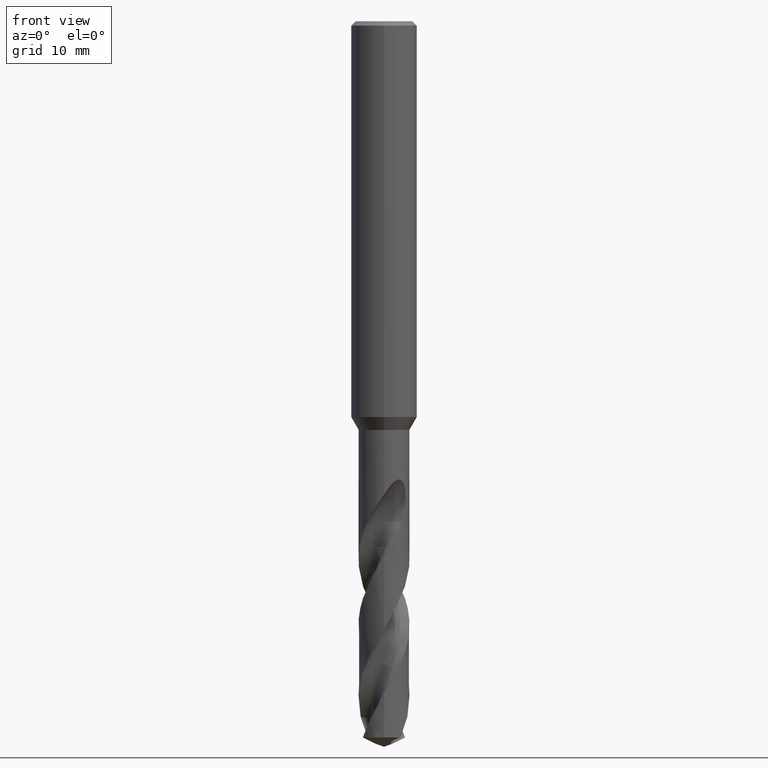
[diagram: clean part render]
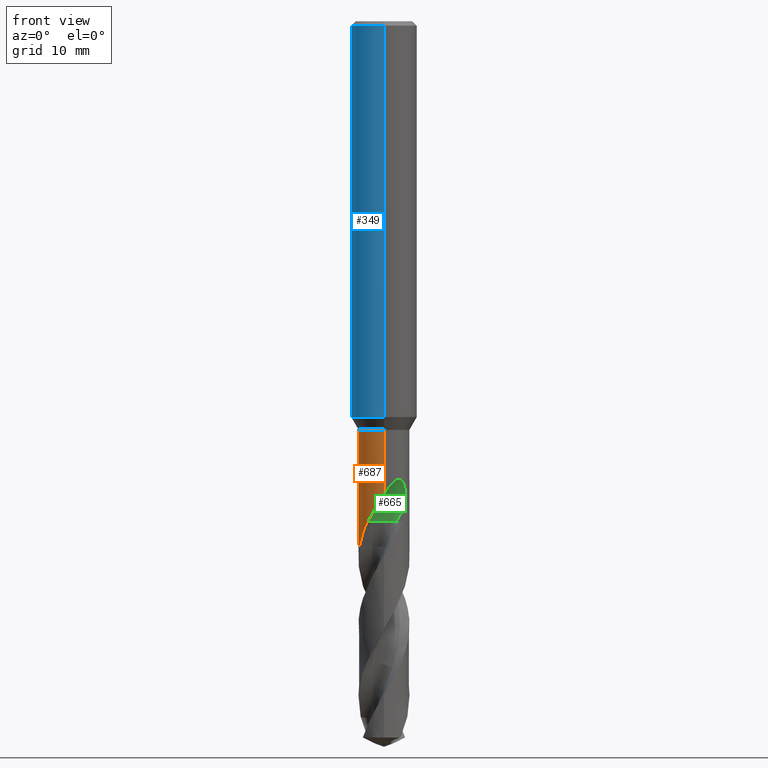
[diagram: same view with three faces highlighted in distinct colors, each labeled with its STEP entity id]
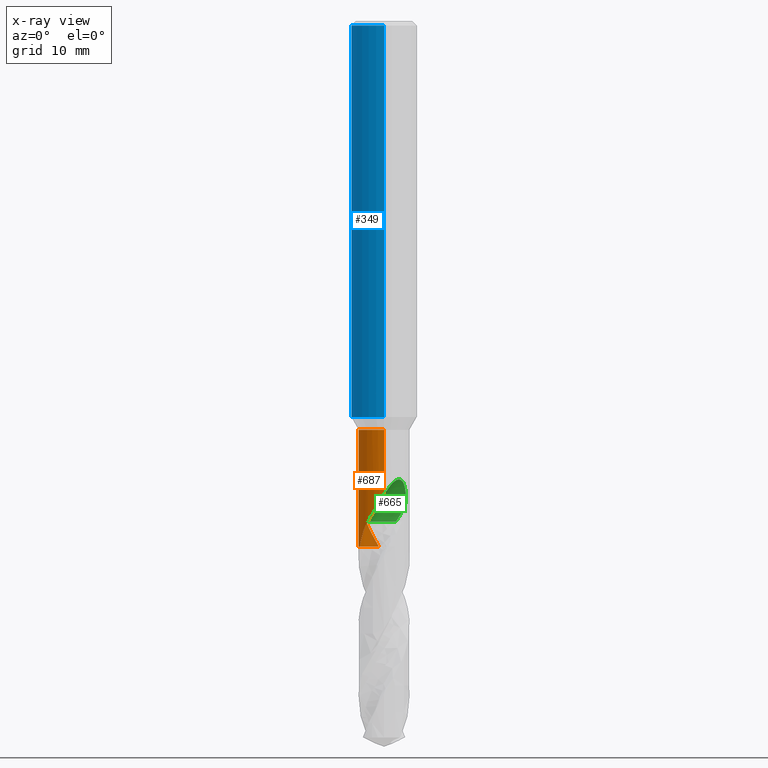
[diagram: x-ray of the same camera — body ghosted, the three highlighted faces saturated]
A machine part, front view with three faces highlighted in distinct colors.
The next image is the same camera in x-ray (body ghosted, the three faces saturated) — at least one of them is partly hidden behind the body in this view.
Their STEP definitions:

[orange] entity #687 — the highlighted cylindrical surface (edge-blend (fillet) strip) has radius 2.325 mm, axis along (-0, -0, 1).
#295=VERTEX_POINT('',#819);
#297=EDGE_CURVE('',#685,#411,#821,.T.);
#299=EDGE_CURVE('',#485,#399,#823,.T.);
#399=VERTEX_POINT('',#933);
#411=VERTEX_POINT('',#946);
#413=EDGE_CURVE('',#763,#295,#948,.T.);
#453=EDGE_CURVE('',#399,#759,#995,.T.);
#485=VERTEX_POINT('',#1028);
#515=EDGE_CURVE('',#759,#753,#1063,.T.);
#537=EDGE_CURVE('',#753,#763,#1088,.T.);
#621=VERTEX_POINT('',#1176);
#645=EDGE_CURVE('',#411,#621,#1203,.T.);
#685=VERTEX_POINT('',#1248);
#687=ADVANCED_FACE('',(#1250),#1251,.T.);
#713=EDGE_CURVE('',#621,#485,#1279,.T.);
#753=VERTEX_POINT('',#1321);
#759=VERTEX_POINT('',#1328);
#763=VERTEX_POINT('',#1332);
#787=EDGE_CURVE('',#685,#295,#1358,.T.);
#819=CARTESIAN_POINT('',(-0.468979195280664,2.27720958947434,-47.8));
#821=B_SPLINE_CURVE_WITH_KNOTS('',3,(#1564,#1565,#1566,#1567,#1568,#1569,#1570,#1571),.UNSPECIFIED.,.F.,.F.,(4,2,2,4),(0.0,1.33621895513997,2.18349234348016,3.7205892893453),.UNSPECIFIED.);
#823=CIRCLE('',#1574,2.325);
#933=CARTESIAN_POINT('',(0.0,2.325,-37.169134295109));
#946=CARTESIAN_POINT('',(-1.48152781817987,-1.79184271741668,-45.5204));
#948=B_SPLINE_CURVE_WITH_KNOTS('',3,(#2707,#2708,#2709,#2710,#2711,#2712,#2713,#2714,#2715,#2716),.UNSPECIFIED.,.F.,.F.,(4,2,2,2,4),(0.0,0.564898171300865,1.07733946612796,1.72985659177052,2.38118299151568),.UNSPECIFIED.);
#995=LINE('',#3119,#3120);
#1028=CARTESIAN_POINT('',(2.84720977263703E-016,-2.325,-37.169134295109));
#1063=B_SPLINE_CURVE_WITH_KNOTS('',3,(#4188,#4189,#4190,#4191,#4192,#4193,#4194,#4195,#4196,#4197,#4198,#4199,#4200,#4201,#4202,#4203,#4204,#4205,#4206,#4207,#4208,#4209,#4210,#4211,#4212,#4213,#4214,#4215),.UNSPECIFIED.,.F.,.F.,(4,2,2,2,2,2,2,2,2,2,2,2,2,4),(0.0,1.13912248348588,1.76110910374654,2.32447259930621,2.97896567979331,3.76516129419405,4.44657056783404,4.75536160848655,4.98105022244976,5.19461766066321,5.46554068969925,5.86191207239794,6.42540059556112,7.06617161550241),.UNSPECIFIED.);
#1088=B_SPLINE_CURVE_WITH_KNOTS('',3,(#4759,#4760,#4761,#4762),.UNSPECIFIED.,.F.,.F.,(4,4),(0.0,1.33622376878182),.UNSPECIFIED.);
#1176=CARTESIAN_POINT('',(6.88258591151304E-013,-2.325,-43.0489714980473));
#1203=B_SPLINE_CURVE_WITH_KNOTS('',3,(#5565,#5566,#5567,#5568,#5569,#5570,#5571,#5572,#5573,#5574,#5575,#5576,#5577,#5578,#5579,#5580,#5581,#5582,#5583,#5584,#5585,#5586,#5587,#5588,#5589,#5590,#5591,#5592),.UNSPECIFIED.,.F.,.F.,(4,2,2,2,2,2,2,2,2,2,2,2,2,4),(0.0,1.13912248348587,1.76110910374652,2.32447259930614,2.97896567979316,3.76516129419391,4.44657056783377,4.75536160848624,4.98105022244952,5.19461766066308,5.46554068969922,5.86191207239769,6.42540059555989,7.06617161550016),.UNSPECIFIED.);
#1248=CARTESIAN_POINT('',(-2.22970567293028,-0.658815309553856,-47.8));
#1250=FACE_OUTER_BOUND('',#6107,.T.);
#1251=CYLINDRICAL_SURFACE('',#6108,2.325);
#1279=LINE('',#6602,#6603);
#1321=CARTESIAN_POINT('',(-1.89171802965627,1.35167595831005,-44.2472759697794));
#1328=CARTESIAN_POINT('',(-6.86593256614366E-013,2.325,-43.0489714980473));
#1332=CARTESIAN_POINT('',(-1.61605482158155,1.67152379990326,-45.5204));
#1358=CIRCLE('',#6971,2.325);
#1564=CARTESIAN_POINT('',(-2.22970567293029,-0.658815309553822,-47.8));
#1565=CARTESIAN_POINT('',(-2.16643862117497,-0.872937389236441,-47.4145965703222));
#1566=CARTESIAN_POINT('',(-2.07621810473157,-1.07000531673003,-47.058610799916));
#1567=CARTESIAN_POINT('',(-1.87857789243243,-1.37719289906454,-46.4035688928686));
#1568=CARTESIAN_POINT('',(-1.81184241533084,-1.45842224238754,-46.2036975721533));
#1569=CARTESIAN_POINT('',(-1.69439563546919,-1.5963349089454,-45.8851916999869));
#1570=CARTESIAN_POINT('',(-1.60037027557868,-1.69358163406053,-45.698303674519));
#1571=CARTESIAN_POINT('',(-1.48152781817987,-1.79184271741668,-45.5204));
#1574=AXIS2_PLACEMENT_3D('',#6978,#6979,#6980);
#2707=CARTESIAN_POINT('',(-1.61605482158155,1.67152379990326,-45.5204));
#2708=CARTESIAN_POINT('',(-1.55171583247687,1.73372772040042,-45.686073857906));
#2709=CARTESIAN_POINT('',(-1.48173903120637,1.79446044529291,-45.8528149749503));
#2710=CARTESIAN_POINT('',(-1.32948919931585,1.90953499024573,-46.1781617750247));
#2711=CARTESIAN_POINT('',(-1.25199236960511,1.96161030979193,-46.3342576353695));
#2712=CARTESIAN_POINT('',(-1.05756490291922,2.07437477290349,-46.7198769177179));
#2713=CARTESIAN_POINT('',(-0.944194570219034,2.12830651832897,-46.9374721351299));
#2714=CARTESIAN_POINT('',(-0.711215541794631,2.21704932586797,-47.369963200494));
#2715=CARTESIAN_POINT('',(-0.591367074244119,2.25200445716958,-47.5844691203133));
#2716=CARTESIAN_POINT('',(-0.468979195280657,2.27720958947435,-47.8));
#3119=CARTESIAN_POINT('',(-2.84720977263703E-016,2.325,-42.4845671475545));
#3120=VECTOR('',#7185,1.0);
#4188=CARTESIAN_POINT('',(1.48152781817987,1.79184271741668,-45.5204));
#4189=CARTESIAN_POINT('',(1.32816215524954,1.91864820864443,-45.1970161379965));
#4190=CARTESIAN_POINT('',(1.15182628411203,2.03136949808758,-44.8955182134654));
#4191=CARTESIAN_POINT('',(0.84434904546233,2.16953302435673,-44.3918451695184));
#4192=CARTESIAN_POINT('',(0.733704405919695,2.20927740577945,-44.214636223586));
#4193=CARTESIAN_POINT('',(0.51951035348296,2.26867677151736,-43.8716055507408));
#4194=CARTESIAN_POINT('',(0.416917325289457,2.28966242904573,-43.7073827692751));
#4195=CARTESIAN_POINT('',(0.194846619808166,2.31994993414916,-43.3534389842937));
#4196=CARTESIAN_POINT('',(0.0735139969543763,2.32706061704974,-43.1609474906288));
#4197=CARTESIAN_POINT('',(-0.195934632326863,2.32139290999632,-42.74914471164));
#4198=CARTESIAN_POINT('',(-0.355690414189737,2.30386268257938,-42.5148244390516));
#4199=CARTESIAN_POINT('',(-0.66375879775824,2.23306719086912,-42.1284464504008));
#4200=CARTESIAN_POINT('',(-0.834200744659196,2.17912994749306,-41.9399090686598));
#4201=CARTESIAN_POINT('',(-1.09216290122272,2.05445568284207,-41.7633628792005));
#4202=CARTESIAN_POINT('',(-1.17755003406933,2.00738830728121,-41.7197312722515));
#4203=CARTESIAN_POINT('',(-1.32716792808106,1.91047541566618,-41.6862143675087));
#4204=CARTESIAN_POINT('',(-1.38853463076109,1.86634055462212,-41.6855885216974));
#4205=CARTESIAN_POINT('',(-1.50283343071054,1.77543194979653,-41.7149227780663));
#4206=CARTESIAN_POINT('',(-1.55282202345978,1.73152490647007,-41.7424262534026));
#4207=CARTESIAN_POINT('',(-1.65454825534067,1.63530604700301,-41.8284814688829));
#4208=CARTESIAN_POINT('',(-1.7016114144506,1.58544301599988,-41.8920177676555));
#4209=CARTESIAN_POINT('',(-1.79801198251176,1.47656343284232,-42.0659998892848));
#4210=CARTESIAN_POINT('',(-1.84408953241722,1.41727070809296,-42.1950432119693));
#4211=CARTESIAN_POINT('',(-1.93073666212595,1.29821165554219,-42.5560920700774));
#4212=CARTESIAN_POINT('',(-1.962061605364,1.24749821680123,-42.8132262215861));
#4213=CARTESIAN_POINT('',(-1.98209052043838,1.21546136214634,-43.4279852717849));
#4214=CARTESIAN_POINT('',(-1.9678987245023,1.24505839729924,-43.813981732258));
#4215=CARTESIAN_POINT('',(-1.89171802965627,1.35167595831006,-44.2472759697795));
#4759=CARTESIAN_POINT('',(-1.89171802970888,1.35167595823641,-44.2472759698084));
#4760=CARTESIAN_POINT('',(-1.81676194605544,1.45657963283354,-44.6736150630027));
#4761=CARTESIAN_POINT('',(-1.72641983044957,1.56482121826764,-45.1024912825263));
#4762=CARTESIAN_POINT('',(-1.61605482158155,1.67152379990326,-45.5204));
#5565=CARTESIAN_POINT('',(-1.48152781817987,-1.79184271741668,-45.5204));
#5566=CARTESIAN_POINT('',(-1.32816215524954,-1.91864820864443,-45.1970161379965));
#5567=CARTESIAN_POINT('',(-1.15182628411204,-2.03136949808758,-44.8955182134654));
#5568=CARTESIAN_POINT('',(-0.844349045462329,-2.16953302435673,-44.3918451695184));
#5569=CARTESIAN_POINT('',(-0.733704405919692,-2.20927740577945,-44.214636223586));
#5570=CARTESIAN_POINT('',(-0.519510353482972,-2.26867677151736,-43.8716055507409));
#5571=CARTESIAN_POINT('',(-0.416917325289483,-2.28966242904573,-43.7073827692751));
#5572=CARTESIAN_POINT('',(-0.19484661980814,-2.31994993414916,-43.3534389842936));
#5573=CARTESIAN_POINT('',(-0.0735139969543639,-2.32706061704974,-43.1609474906288));
#5574=CARTESIAN_POINT('',(0.195934632326865,-2.32139290999632,-42.74914471164));
#5575=CARTESIAN_POINT('',(0.355690414189739,-2.30386268257938,-42.5148244390516));
#5576=CARTESIAN_POINT('',(0.663758797758215,-2.23306719086912,-42.1284464504009));
#5577=CARTESIAN_POINT('',(0.834200744659192,-2.17912994749307,-41.9399090686598));
#5578=CARTESIAN_POINT('',(1.09216290122272,-2.05445568284207,-41.7633628792005));
#5579=CARTESIAN_POINT('',(1.17755003406933,-2.0073883072812,-41.7197312722515));
#5580=CARTESIAN_POINT('',(1.32716792808108,-1.91047541566616,-41.6862143675086));
#5581=CARTESIAN_POINT('',(1.3885346307611,-1.86634055462212,-41.6855885216974));
#5582=CARTESIAN_POINT('',(1.50283343071055,-1.77543194979653,-41.7149227780663));
#5583=CARTESIAN_POINT('',(1.55282202345979,-1.73152490647007,-41.7424262534026));
#5584=CARTESIAN_POINT('',(1.65454825534066,-1.63530604700301,-41.8284814688829));
#5585=CARTESIAN_POINT('',(1.70161141445059,-1.58544301599989,-41.8920177676555));
#5586=CARTESIAN_POINT('',(1.79801198251172,-1.47656343284236,-42.0659998892847));
#5587=CARTESIAN_POINT('',(1.84408953241719,-1.41727070809299,-42.1950432119692));
#5588=CARTESIAN_POINT('',(1.93073666212593,-1.29821165554222,-42.5560920700773));
#5589=CARTESIAN_POINT('',(1.962061605364,-1.24749821680123,-42.8132262215859));
#5590=CARTESIAN_POINT('',(1.98209052043839,-1.21546136214633,-43.4279852717851));
#5591=CARTESIAN_POINT('',(1.96789872450227,-1.24505839729928,-43.8139817322582));
#5592=CARTESIAN_POINT('',(1.89171802965627,-1.35167595831005,-44.2472759697795));
#6107=EDGE_LOOP('',(#7428,#7429,#7430,#7431,#7432,#7433,#7434,#7435,#7436));
#6108=AXIS2_PLACEMENT_3D('',#7437,#7438,#7439);
#6602=CARTESIAN_POINT('',(2.84720977263703E-016,-2.325,-42.4845671475545));
#6603=VECTOR('',#7464,1.0);
#6971=AXIS2_PLACEMENT_3D('',#7526,#7527,#7528);
#6978=CARTESIAN_POINT('',(0.0,0.0,-37.169134295109));
#6979=DIRECTION('',(0.0,0.0,-1.0));
#6980=DIRECTION('',(0.0,1.0,0.0));
#7185=DIRECTION('',(0.0,0.0,-1.0));
#7428=ORIENTED_EDGE('',*,*,#453,.T.);
#7429=ORIENTED_EDGE('',*,*,#515,.T.);
#7430=ORIENTED_EDGE('',*,*,#537,.T.);
#7431=ORIENTED_EDGE('',*,*,#413,.T.);
#7432=ORIENTED_EDGE('',*,*,#787,.F.);
#7433=ORIENTED_EDGE('',*,*,#297,.T.);
#7434=ORIENTED_EDGE('',*,*,#645,.T.);
#7435=ORIENTED_EDGE('',*,*,#713,.T.);
#7436=ORIENTED_EDGE('',*,*,#299,.T.);
#7437=CARTESIAN_POINT('',(0.0,0.0,-42.4845671475545));
#7438=DIRECTION('',(-0.0,-0.0,1.0));
#7439=DIRECTION('',(0.0,1.0,0.0));
#7464=DIRECTION('',(-0.0,-0.0,1.0));
#7526=CARTESIAN_POINT('',(0.0,0.0,-47.8));
#7527=DIRECTION('',(0.0,0.0,-1.0));
#7528=DIRECTION('',(0.0,1.0,0.0));

[blue] entity #349 — the highlighted cylindrical surface (edge-blend (fillet) strip) has radius 3 mm, axis along (-0, -0, 1).
#285=VERTEX_POINT('',#808);
#349=ADVANCED_FACE('',(#876),#877,.T.);
#383=EDGE_CURVE('',#545,#747,#916,.T.);
#385=EDGE_CURVE('',#523,#771,#918,.T.);
#425=EDGE_CURVE('',#457,#473,#962,.T.);
#427=VERTEX_POINT('',#964);
#457=VERTEX_POINT('',#999);
#459=EDGE_CURVE('',#747,#785,#1001,.T.);
#473=VERTEX_POINT('',#1016);
#503=VERTEX_POINT('',#1049);
#523=VERTEX_POINT('',#1072);
#545=VERTEX_POINT('',#1097);
#549=EDGE_CURVE('',#765,#523,#1101,.T.);
#567=EDGE_CURVE('',#285,#637,#1119,.T.);
#587=EDGE_CURVE('',#503,#285,#1140,.T.);
#637=VERTEX_POINT('',#1193);
#679=EDGE_CURVE('',#771,#457,#1242,.T.);
#715=EDGE_CURVE('',#427,#545,#1281,.T.);
#721=EDGE_CURVE('',#637,#427,#1287,.T.);
#747=VERTEX_POINT('',#1315);
#765=VERTEX_POINT('',#1334);
#769=EDGE_CURVE('',#765,#785,#1338,.T.);
#771=VERTEX_POINT('',#1340);
#777=EDGE_CURVE('',#473,#503,#1346,.T.);
#785=VERTEX_POINT('',#1356);
#808=CARTESIAN_POINT('',(-1.0350734039088,2.81578107254819,-31.3171221986971));
#876=FACE_OUTER_BOUND('',#1794,.T.);
#877=CYLINDRICAL_SURFACE('',#1795,3.0);
#916=B_SPLINE_CURVE_WITH_KNOTS('',3,(#2576,#2577,#2578,#2579,#2580,#2581,#2582,#2583,#2584,#2585,#2586,#2587,#2588,#2589,#2590,#2591),.UNSPECIFIED.,.F.,.F.,(4,2,2,2,2,2,2,4),(5.66023402257373,6.29060333517104,6.60504483258975,6.91948633000846,7.23392782742717,7.54836932484587,7.86141901111221,8.17446869737855),.UNSPECIFIED.);
#918=CIRCLE('',#2594,3.0);
#962=B_SPLINE_CURVE_WITH_KNOTS('',3,(#2733,#2734,#2735,#2736,#2737,#2738,#2739,#2740,#2741,#2742,#2743,#2744,#2745,#2746,#2747,#2748,#2749,#2750,#2751,#2752,#2753,#2754,#2755,#2756,#2757,#2758,#2759),.UNSPECIFIED.,.F.,.F.,(4,2,3,2,2,2,2,2,2,2,2,2,4),(-0.54422824842136,-0.27211412421068,0.0,0.272114124210678,0.544228248421357,0.817906359646673,1.09158447087199,1.36255924571499,1.63353402055798,1.90530456554772,2.17707511053746,2.4488456555272,2.72061620051693),.UNSPECIFIED.);
#964=CARTESIAN_POINT('',(-3.67366600472444E-016,3.0,-32.7128911336578));
#999=CARTESIAN_POINT('',(-1.20768269592175E-015,3.0,-32.0232688117743));
#1001=LINE('',#3154,#3155);
#1016=CARTESIAN_POINT('',(-0.486378944383045,2.96031003823262,-31.6432837483006));
#1049=CARTESIAN_POINT('',(-0.562333990228013,2.94682549253162,-31.3171221986971));
#1072=CARTESIAN_POINT('',(3.67381906146713E-016,-3.0,-0.399999999999999));
#1097=CARTESIAN_POINT('',(-1.337052752443,2.68557069115386,-33.3720803908795));
#1101=LINE('',#4780,#4781);
#1119=B_SPLINE_CURVE_WITH_KNOTS('',3,(#4837,#4838,#4839,#4840,#4841,#4842,#4843,#4844,#4845,#4846,#4847,#4848,#4849,#4850),.UNSPECIFIED.,.F.,.F.,(4,2,2,2,2,2,4),(3.16026050654945,3.61086409539206,4.06146768423468,4.51207127307729,4.95991823802074,5.40776520296419,5.86282890530594),.UNSPECIFIED.);
#1140=CIRCLE('',#5038,3.0);
#1193=CARTESIAN_POINT('',(-2.06254272401587E-016,3.0,-32.5000801551881));
#1242=LINE('',#6096,#6097);
#1281=ELLIPSE('',#6606,3.34478529612858,3.0);
#1287=LINE('',#6623,#6624);
#1315=CARTESIAN_POINT('',(-2.46407913303377E-016,3.0,-34.0310253601033));
#1334=CARTESIAN_POINT('',(3.67381906146713E-016,-3.0,-36.0));
#1338=CIRCLE('',#6919,3.0);
#1340=CARTESIAN_POINT('',(0.0,3.0,-0.399999999999999));
#1346=B_SPLINE_CURVE_WITH_KNOTS('',3,(#6930,#6931,#6932,#6933,#6934,#6935,#6936,#6937,#6938,#6939,#6940,#6941,#6942,#6943,#6944,#6945,#6946,#6947,#6948,#6949,#6950,#6951,#6952,#6953,#6954,#6955,#6956),.UNSPECIFIED.,.F.,.F.,(4,2,3,2,2,2,2,2,2,2,2,2,4),(-0.54422824842136,-0.27211412421068,0.0,0.272114124210678,0.544228248421357,0.817906359646673,1.09158447087199,1.36255924571499,1.63353402055798,1.90530456554772,2.17707511053746,2.4488456555272,2.72061620051693),.UNSPECIFIED.);
#1356=CARTESIAN_POINT('',(0.0,3.0,-36.0));
#1794=EDGE_LOOP('',(#7032,#7033,#7034,#7035,#7036,#7037,#7038,#7039,#7040,#7041,#7042,#7043));
#1795=AXIS2_PLACEMENT_3D('',#7044,#7045,#7046);
#2576=CARTESIAN_POINT('',(-1.53050642192579,2.58022287650581,-33.0319811255889));
#2577=CARTESIAN_POINT('',(-1.44691631248335,2.62980577312329,-33.2314887010961));
#2578=CARTESIAN_POINT('',(-1.32276760444366,2.69707077181617,-33.4113258593841));
#2579=CARTESIAN_POINT('',(-1.10973155101076,2.78826898930335,-33.6245951706909));
#2580=CARTESIAN_POINT('',(-1.02948996220254,2.81934349084513,-33.6916117853674));
#2581=CARTESIAN_POINT('',(-0.853932698223484,2.87738531454781,-33.8105216600777));
#2582=CARTESIAN_POINT('',(-0.758609991487907,2.90431263574779,-33.8624240602539));
#2583=CARTESIAN_POINT('',(-0.558469552260235,2.94934446690523,-33.9464055954533));
#2584=CARTESIAN_POINT('',(-0.453457041446381,2.96746268462387,-33.9785511641911));
#2585=CARTESIAN_POINT('',(-0.240810292537893,2.99223469602914,-34.0209924679526));
#2586=CARTESIAN_POINT('',(-0.133171317626829,2.99887501234033,-34.0312723335086));
#2587=CARTESIAN_POINT('',(0.0759830626177195,3.00085245803086,-34.0312723335086));
#2588=CARTESIAN_POINT('',(0.183273473896684,2.99629272230549,-34.0210815541729));
#2589=CARTESIAN_POINT('',(0.39543915272815,2.97573303917486,-33.9788816901513));
#2590=CARTESIAN_POINT('',(0.500318639064909,2.95974677710468,-33.9468871509919));
#2591=CARTESIAN_POINT('',(0.600330982089903,2.93932011049205,-33.9050368602192));
#2594=AXIS2_PLACEMENT_3D('',#7089,#7090,#7091);
#2733=CARTESIAN_POINT('',(0.665621182276714,2.92522622060321,-30.8140957881762));
#2734=CARTESIAN_POINT('',(0.728850563417096,2.91083867849353,-30.877518087557));
#2735=CARTESIAN_POINT('',(0.783900459387161,2.89602337967411,-30.9578702196133));
#2736=CARTESIAN_POINT('',(0.857188692916628,2.87518328740958,-31.1345580124299));
#2737=CARTESIAN_POINT('',(0.875400981188567,2.86943777108584,-31.2309373045166));
#2738=CARTESIAN_POINT('',(0.875400981188567,2.86943777108584,-31.3216420125868));
#2739=CARTESIAN_POINT('',(0.875400981188567,2.86943777108584,-31.412346720657));
#2740=CARTESIAN_POINT('',(0.857188692916629,2.87518328740958,-31.5087260127437));
#2741=CARTESIAN_POINT('',(0.783900459387161,2.89602337967411,-31.6854138055602));
#2742=CARTESIAN_POINT('',(0.728850563417096,2.91083867849353,-31.7657659376165));
#2743=CARTESIAN_POINT('',(0.60202838769231,2.93969645569731,-31.8929750586276));
#2744=CARTESIAN_POINT('',(0.5214778595293,2.95568533572518,-31.9483797636259));
#2745=CARTESIAN_POINT('',(0.34429909105015,2.98152194310932,-32.0221641076746));
#2746=CARTESIAN_POINT('',(0.247628172090375,2.99115403786358,-32.0405166027747));
#2747=CARTESIAN_POINT('',(0.0663244946631877,3.00062654348629,-32.0405166027747));
#2748=CARTESIAN_POINT('',(-0.0299285908853379,3.00115720326599,-32.0224875186921));
#2749=CARTESIAN_POINT('',(-0.206881310600538,2.99416773126077,-31.949244373347));
#2750=CARTESIAN_POINT('',(-0.287593937381961,2.98687212067831,-31.8940404490632));
#2751=CARTESIAN_POINT('',(-0.415200117492864,2.97182576996222,-31.7666805419979));
#2752=CARTESIAN_POINT('',(-0.470604049431396,2.96309385107775,-31.6859121102136));
#2753=CARTESIAN_POINT('',(-0.544183869965539,2.95046729924835,-31.5086992019516));
#2754=CARTESIAN_POINT('',(-0.562348199187247,2.94682278104247,-31.41223219425));
#2755=CARTESIAN_POINT('',(-0.562348199187247,2.94682278104247,-31.2310518309235));
#2756=CARTESIAN_POINT('',(-0.54418386996554,2.95046729924835,-31.134584823222));
#2757=CARTESIAN_POINT('',(-0.4706040494314,2.96309385107775,-30.95737191496));
#2758=CARTESIAN_POINT('',(-0.415200117492863,2.97182576996222,-30.8766034831756));
#2759=CARTESIAN_POINT('',(-0.351303479704285,2.97935997575782,-30.812830162452));
#3154=CARTESIAN_POINT('',(-3.67381906146713E-016,3.0,-18.2));
#3155=VECTOR('',#7186,1.0);
#4780=CARTESIAN_POINT('',(3.67381906146713E-016,-3.0,-18.2));
#4781=VECTOR('',#7293,1.0);
#4837=CARTESIAN_POINT('',(-0.944028754947609,2.84759718180646,-30.87109591768));
#4838=CARTESIAN_POINT('',(-1.00479265183033,2.82745289805341,-31.0168616503562));
#4839=CARTESIAN_POINT('',(-1.03510901790186,2.81576798068631,-31.1761006644519));
#4840=CARTESIAN_POINT('',(-1.03510901790186,2.81576798068631,-31.4765030570137));
#4841=CARTESIAN_POINT('',(-1.00479265183033,2.82745289805341,-31.6357420711094));
#4842=CARTESIAN_POINT('',(-0.88326485806506,2.86774146555976,-31.9272735364618));
#4843=CARTESIAN_POINT('',(-0.792109261194285,2.89554580131596,-32.0596991578702));
#4844=CARTESIAN_POINT('',(-0.582867737485067,2.94478284423827,-32.2682275153448));
#4845=CARTESIAN_POINT('',(-0.450640829386874,2.96956027684007,-32.358826497016));
#4846=CARTESIAN_POINT('',(-0.159819744133953,2.99930375982357,-32.4794282329782));
#4847=CARTESIAN_POINT('',(-0.00114290335869099,3.00371168811663,-32.5093686300866));
#4848=CARTESIAN_POINT('',(0.299461057962613,2.98886806232847,-32.5093686300866));
#4849=CARTESIAN_POINT('',(0.459264276215476,2.96836791045541,-32.4785566268234));
#4850=CARTESIAN_POINT('',(0.604975334200916,2.93836771779988,-32.4175314011172));
#5038=AXIS2_PLACEMENT_3D('',#7307,#7308,#7309);
#6096=CARTESIAN_POINT('',(-3.67381906146713E-016,3.0,-18.2));
#6097=VECTOR('',#7425,1.0);
#6606=AXIS2_PLACEMENT_3D('',#7465,#7466,#7467);
#6623=CARTESIAN_POINT('',(-3.67381906146713E-016,3.0,-18.2));
#6624=VECTOR('',#7468,1.0);
#6919=AXIS2_PLACEMENT_3D('',#7502,#7503,#7504);
#6930=CARTESIAN_POINT('',(0.665621182276714,2.92522622060321,-30.8140957881762));
#6931=CARTESIAN_POINT('',(0.728850563417096,2.91083867849353,-30.877518087557));
#6932=CARTESIAN_POINT('',(0.783900459387161,2.89602337967411,-30.9578702196133));
#6933=CARTESIAN_POINT('',(0.857188692916628,2.87518328740958,-31.1345580124299));
#6934=CARTESIAN_POINT('',(0.875400981188567,2.86943777108584,-31.2309373045166));
#6935=CARTESIAN_POINT('',(0.875400981188567,2.86943777108584,-31.3216420125868));
#6936=CARTESIAN_POINT('',(0.875400981188567,2.86943777108584,-31.412346720657));
#6937=CARTESIAN_POINT('',(0.857188692916629,2.87518328740958,-31.5087260127437));
#6938=CARTESIAN_POINT('',(0.783900459387161,2.89602337967411,-31.6854138055602));
#6939=CARTESIAN_POINT('',(0.728850563417096,2.91083867849353,-31.7657659376165));
#6940=CARTESIAN_POINT('',(0.60202838769231,2.93969645569731,-31.8929750586276));
#6941=CARTESIAN_POINT('',(0.5214778595293,2.95568533572518,-31.9483797636259));
#6942=CARTESIAN_POINT('',(0.34429909105015,2.98152194310932,-32.0221641076746));
#6943=CARTESIAN_POINT('',(0.247628172090375,2.99115403786358,-32.0405166027747));
#6944=CARTESIAN_POINT('',(0.0663244946631877,3.00062654348629,-32.0405166027747));
#6945=CARTESIAN_POINT('',(-0.0299285908853379,3.00115720326599,-32.0224875186921));
#6946=CARTESIAN_POINT('',(-0.206881310600538,2.99416773126077,-31.949244373347));
#6947=CARTESIAN_POINT('',(-0.287593937381961,2.98687212067831,-31.8940404490632));
#6948=CARTESIAN_POINT('',(-0.415200117492864,2.97182576996222,-31.7666805419979));
#6949=CARTESIAN_POINT('',(-0.470604049431396,2.96309385107775,-31.6859121102136));
#6950=CARTESIAN_POINT('',(-0.544183869965539,2.95046729924835,-31.5086992019516));
#6951=CARTESIAN_POINT('',(-0.562348199187247,2.94682278104247,-31.41223219425));
#6952=CARTESIAN_POINT('',(-0.562348199187247,2.94682278104247,-31.2310518309235));
#6953=CARTESIAN_POINT('',(-0.54418386996554,2.95046729924835,-31.134584823222));
#6954=CARTESIAN_POINT('',(-0.4706040494314,2.96309385107775,-30.95737191496));
#6955=CARTESIAN_POINT('',(-0.415200117492863,2.97182576996222,-30.8766034831756));
#6956=CARTESIAN_POINT('',(-0.351303479704285,2.97935997575782,-30.812830162452));
#7032=ORIENTED_EDGE('',*,*,#679,.T.);
#7033=ORIENTED_EDGE('',*,*,#425,.T.);
#7034=ORIENTED_EDGE('',*,*,#777,.T.);
#7035=ORIENTED_EDGE('',*,*,#587,.T.);
#7036=ORIENTED_EDGE('',*,*,#567,.T.);
#7037=ORIENTED_EDGE('',*,*,#721,.T.);
#7038=ORIENTED_EDGE('',*,*,#715,.T.);
#7039=ORIENTED_EDGE('',*,*,#383,.T.);
#7040=ORIENTED_EDGE('',*,*,#459,.T.);
#7041=ORIENTED_EDGE('',*,*,#769,.F.);
#7042=ORIENTED_EDGE('',*,*,#549,.T.);
#7043=ORIENTED_EDGE('',*,*,#385,.T.);
#7044=CARTESIAN_POINT('',(0.0,0.0,-18.2));
#7045=DIRECTION('',(-0.0,-0.0,1.0));
#7046=DIRECTION('',(0.0,1.0,0.0));
#7089=CARTESIAN_POINT('',(0.0,0.0,-0.399999999999999));
#7090=DIRECTION('',(0.0,0.0,-1.0));
#7091=DIRECTION('',(0.0,1.0,0.0));
#7186=DIRECTION('',(0.0,0.0,-1.0));
#7293=DIRECTION('',(-0.0,-0.0,1.0));
#7307=CARTESIAN_POINT('',(0.0,0.0,-31.3171221986971));
#7308=DIRECTION('',(0.0,-0.0,1.0));
#7309=DIRECTION('',(0.0,1.0,0.0));
#7425=DIRECTION('',(0.0,0.0,-1.0));
#7465=CARTESIAN_POINT('',(0.0,0.0,-32.7128911336578));
#7466=DIRECTION('',(-0.442195774284071,0.0,0.896918556617774));
#7467=DIRECTION('',(0.896918556617774,-0.0,0.442195774284071));
#7468=DIRECTION('',(0.0,0.0,-1.0));
#7502=CARTESIAN_POINT('',(0.0,0.0,-36.0));
#7503=DIRECTION('',(0.0,0.0,-1.0));
#7504=DIRECTION('',(0.0,1.0,0.0));

[green] entity #665 — the highlighted face is a SurfaceOfRevolution surface.
#411=VERTEX_POINT('',#946);
#553=VERTEX_POINT('',#1105);
#565=EDGE_CURVE('',#621,#553,#1117,.T.);
#593=EDGE_CURVE('',#411,#695,#1146,.T.);
#597=VERTEX_POINT('',#1150);
#607=EDGE_CURVE('',#597,#553,#1160,.T.);
#621=VERTEX_POINT('',#1176);
#645=EDGE_CURVE('',#411,#621,#1203,.T.);
#665=ADVANCED_FACE('',(#1225),#1226,.F.);
#695=VERTEX_POINT('',#1260);
#783=EDGE_CURVE('',#695,#597,#1354,.T.);
#946=CARTESIAN_POINT('',(-1.48152781817987,-1.79184271741668,-45.5204));
#1105=CARTESIAN_POINT('',(1.89171802965627,-1.35167595831005,-44.2472759697795));
#1117=B_SPLINE_CURVE_WITH_KNOTS('',3,(#4807,#4808,#4809,#4810,#4811,#4812,#4813,#4814,#4815,#4816,#4817,#4818,#4819,#4820,#4821,#4822,#4823,#4824,#4825,#4826,#4827,#4828,#4829,#4830,#4831,#4832,#4833,#4834),.UNSPECIFIED.,.F.,.F.,(4,2,2,2,2,2,2,2,2,2,2,2,2,4),(0.0,1.13912248348587,1.76110910374652,2.32447259930614,2.97896567979316,3.76516129419391,4.44657056783377,4.75536160848624,4.98105022244952,5.19461766066308,5.46554068969922,5.86191207239769,6.42540059555989,7.06617161550016),.UNSPECIFIED.);
#1146=CIRCLE('',#5045,1.55);
#1150=CARTESIAN_POINT('',(1.09601551076844,-1.15148448923156,-45.5204));
#1160=CIRCLE('',#5119,10.1027292678117);
#1176=CARTESIAN_POINT('',(6.88258591151304E-013,-2.325,-43.0489714980473));
#1203=B_SPLINE_CURVE_WITH_KNOTS('',3,(#5565,#5566,#5567,#5568,#5569,#5570,#5571,#5572,#5573,#5574,#5575,#5576,#5577,#5578,#5579,#5580,#5581,#5582,#5583,#5584,#5585,#5586,#5587,#5588,#5589,#5590,#5591,#5592),.UNSPECIFIED.,.F.,.F.,(4,2,2,2,2,2,2,2,2,2,2,2,2,4),(0.0,1.13912248348587,1.76110910374652,2.32447259930614,2.97896567979316,3.76516129419391,4.44657056783377,4.75536160848624,4.98105022244952,5.19461766066308,5.46554068969922,5.86191207239769,6.42540059555989,7.06617161550016),.UNSPECIFIED.);
#1225=FACE_OUTER_BOUND('',#6053,.T.);
#1226=SURFACE_OF_REVOLUTION('',#6054,#6055);
#1260=CARTESIAN_POINT('',(0.242937713365769,-0.716646206861117,-45.5204));
#1354=CIRCLE('',#6966,1.55);
#4807=CARTESIAN_POINT('',(-1.48152781817987,-1.79184271741668,-45.5204));
#4808=CARTESIAN_POINT('',(-1.32816215524954,-1.91864820864443,-45.1970161379965));
#4809=CARTESIAN_POINT('',(-1.15182628411204,-2.03136949808758,-44.8955182134654));
#4810=CARTESIAN_POINT('',(-0.844349045462329,-2.16953302435673,-44.3918451695184));
#4811=CARTESIAN_POINT('',(-0.733704405919692,-2.20927740577945,-44.214636223586));
#4812=CARTESIAN_POINT('',(-0.519510353482972,-2.26867677151736,-43.8716055507409));
#4813=CARTESIAN_POINT('',(-0.416917325289483,-2.28966242904573,-43.7073827692751));
#4814=CARTESIAN_POINT('',(-0.19484661980814,-2.31994993414916,-43.3534389842936));
#4815=CARTESIAN_POINT('',(-0.0735139969543639,-2.32706061704974,-43.1609474906288));
#4816=CARTESIAN_POINT('',(0.195934632326865,-2.32139290999632,-42.74914471164));
#4817=CARTESIAN_POINT('',(0.355690414189739,-2.30386268257938,-42.5148244390516));
#4818=CARTESIAN_POINT('',(0.663758797758215,-2.23306719086912,-42.1284464504009));
#4819=CARTESIAN_POINT('',(0.834200744659192,-2.17912994749307,-41.9399090686598));
#4820=CARTESIAN_POINT('',(1.09216290122272,-2.05445568284207,-41.7633628792005));
#4821=CARTESIAN_POINT('',(1.17755003406933,-2.0073883072812,-41.7197312722515));
#4822=CARTESIAN_POINT('',(1.32716792808108,-1.91047541566616,-41.6862143675086));
#4823=CARTESIAN_POINT('',(1.3885346307611,-1.86634055462212,-41.6855885216974));
#4824=CARTESIAN_POINT('',(1.50283343071055,-1.77543194979653,-41.7149227780663));
#4825=CARTESIAN_POINT('',(1.55282202345979,-1.73152490647007,-41.7424262534026));
#4826=CARTESIAN_POINT('',(1.65454825534066,-1.63530604700301,-41.8284814688829));
#4827=CARTESIAN_POINT('',(1.70161141445059,-1.58544301599989,-41.8920177676555));
#4828=CARTESIAN_POINT('',(1.79801198251172,-1.47656343284236,-42.0659998892847));
#4829=CARTESIAN_POINT('',(1.84408953241719,-1.41727070809299,-42.1950432119692));
#4830=CARTESIAN_POINT('',(1.93073666212593,-1.29821165554222,-42.5560920700773));
#4831=CARTESIAN_POINT('',(1.962061605364,-1.24749821680123,-42.8132262215859));
#4832=CARTESIAN_POINT('',(1.98209052043839,-1.21546136214633,-43.4279852717851));
#4833=CARTESIAN_POINT('',(1.96789872450227,-1.24505839729928,-43.8139817322582));
#4834=CARTESIAN_POINT('',(1.89171802965627,-1.35167595831005,-44.2472759697795));
#5045=AXIS2_PLACEMENT_3D('',#7310,#7311,#7312);
#5119=AXIS2_PLACEMENT_3D('',#7317,#7318,#7319);
#5565=CARTESIAN_POINT('',(-1.48152781817987,-1.79184271741668,-45.5204));
#5566=CARTESIAN_POINT('',(-1.32816215524954,-1.91864820864443,-45.1970161379965));
#5567=CARTESIAN_POINT('',(-1.15182628411204,-2.03136949808758,-44.8955182134654));
#5568=CARTESIAN_POINT('',(-0.844349045462329,-2.16953302435673,-44.3918451695184));
#5569=CARTESIAN_POINT('',(-0.733704405919692,-2.20927740577945,-44.214636223586));
#5570=CARTESIAN_POINT('',(-0.519510353482972,-2.26867677151736,-43.8716055507409));
#5571=CARTESIAN_POINT('',(-0.416917325289483,-2.28966242904573,-43.7073827692751));
#5572=CARTESIAN_POINT('',(-0.19484661980814,-2.31994993414916,-43.3534389842936));
#5573=CARTESIAN_POINT('',(-0.0735139969543639,-2.32706061704974,-43.1609474906288));
#5574=CARTESIAN_POINT('',(0.195934632326865,-2.32139290999632,-42.74914471164));
#5575=CARTESIAN_POINT('',(0.355690414189739,-2.30386268257938,-42.5148244390516));
#5576=CARTESIAN_POINT('',(0.663758797758215,-2.23306719086912,-42.1284464504009));
#5577=CARTESIAN_POINT('',(0.834200744659192,-2.17912994749307,-41.9399090686598));
#5578=CARTESIAN_POINT('',(1.09216290122272,-2.05445568284207,-41.7633628792005));
#5579=CARTESIAN_POINT('',(1.17755003406933,-2.0073883072812,-41.7197312722515));
#5580=CARTESIAN_POINT('',(1.32716792808108,-1.91047541566616,-41.6862143675086));
#5581=CARTESIAN_POINT('',(1.3885346307611,-1.86634055462212,-41.6855885216974));
#5582=CARTESIAN_POINT('',(1.50283343071055,-1.77543194979653,-41.7149227780663));
#5583=CARTESIAN_POINT('',(1.55282202345979,-1.73152490647007,-41.7424262534026));
#5584=CARTESIAN_POINT('',(1.65454825534066,-1.63530604700301,-41.8284814688829));
#5585=CARTESIAN_POINT('',(1.70161141445059,-1.58544301599989,-41.8920177676555));
#5586=CARTESIAN_POINT('',(1.79801198251172,-1.47656343284236,-42.0659998892847));
#5587=CARTESIAN_POINT('',(1.84408953241719,-1.41727070809299,-42.1950432119692));
#5588=CARTESIAN_POINT('',(1.93073666212593,-1.29821165554222,-42.5560920700773));
#5589=CARTESIAN_POINT('',(1.962061605364,-1.24749821680123,-42.8132262215859));
#5590=CARTESIAN_POINT('',(1.98209052043839,-1.21546136214633,-43.4279852717851));
#5591=CARTESIAN_POINT('',(1.96789872450227,-1.24505839729928,-43.8139817322582));
#5592=CARTESIAN_POINT('',(1.89171802965627,-1.35167595831005,-44.2472759697795));
#6053=EDGE_LOOP('',(#7378,#7379,#7380,#7381,#7382));
#6054=(B_SPLINE_CURVE(3,(#7384,#7385,#7386,#7387,#7388,#7389,#7390,#7391,#7392),.UNSPECIFIED.,.F.,.F.)B_SPLINE_CURVE_WITH_KNOTS((4,1,3,1,4),(-2.85587302611171,-2.55247774395948,-2.24908246180725,-1.94568717965502,-1.64229189750279),.UNSPECIFIED.)RATIONAL_B_SPLINE_CURVE((1.09204869723223,1.03068289907741,0.969317100922589,1.03068289907741,1.09204869723223,1.03068289907741,0.969317100922589,1.03068289907741,1.09204869723223))BOUNDED_CURVE()REPRESENTATION_ITEM('')GEOMETRIC_REPRESENTATION_ITEM()CURVE());
#6055=AXIS1_PLACEMENT('',#7399,#7400);
#6966=AXIS2_PLACEMENT_3D('',#7523,#7524,#7525);
#7310=CARTESIAN_POINT('',(-1.24499001132517E-005,-2.24748755009989,-45.5204));
#7311=DIRECTION('',(-0.0,0.0,-1.0));
#7312=DIRECTION('',(-0.707098748947307,-0.707114813334548,0.0));
#7317=CARTESIAN_POINT('',(0.788145985271685,-11.2375,-46.0129912407948));
#7318=DIRECTION('',(0.847998304005088,0.0,-0.52999894000318));
#7319=DIRECTION('',(0.0535598122533608,0.994880693138896,0.0856956996053773));
#7378=ORIENTED_EDGE('',*,*,#645,.F.);
#7379=ORIENTED_EDGE('',*,*,#593,.T.);
#7380=ORIENTED_EDGE('',*,*,#783,.T.);
#7381=ORIENTED_EDGE('',*,*,#607,.T.);
#7382=ORIENTED_EDGE('',*,*,#565,.F.);
#7384=CARTESIAN_POINT('',(1.09601551076844,-1.15148448923156,-45.5204));
#7385=CARTESIAN_POINT('',(0.880933414429202,-0.936397506499738,-45.5204));
#7386=CARTESIAN_POINT('',(0.321395826770361,-0.631003069685136,-45.5204));
#7387=CARTESIAN_POINT('',(-0.312408318500254,-0.699123400557562,-45.5204));
#7388=CARTESIAN_POINT('',(-0.593410409526719,-0.8155731457059,-45.5204));
#7389=CARTESIAN_POINT('',(-0.874412500553184,-0.932022890854238,-45.5204));
#7390=CARTESIAN_POINT('',(-1.37061470882675,-1.3321871603047,-45.5204));
#7391=CARTESIAN_POINT('',(-1.55011719586145,-1.9438463229016,-45.5204));
#7392=CARTESIAN_POINT('',(-1.55001235783587,-2.24802177772224,-45.5204));
#7399=CARTESIAN_POINT('',(0.788145985271685,-11.2375,-46.0129912407948));
#7400=DIRECTION('',(-0.847998304005088,0.0,0.52999894000318));
#7523=CARTESIAN_POINT('',(-1.24499001132517E-005,-2.24748755009989,-45.5204));
#7524=DIRECTION('',(-0.0,0.0,-1.0));
#7525=DIRECTION('',(-0.707098748947307,-0.707114813334548,0.0));